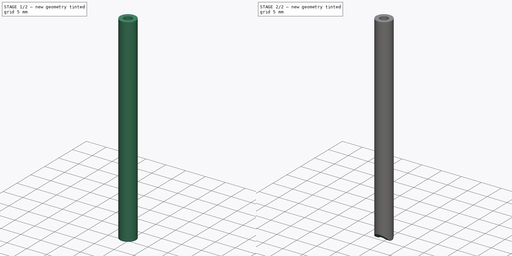
[diagram: build sequence overview — one tinted view per stage of 2, left to right]
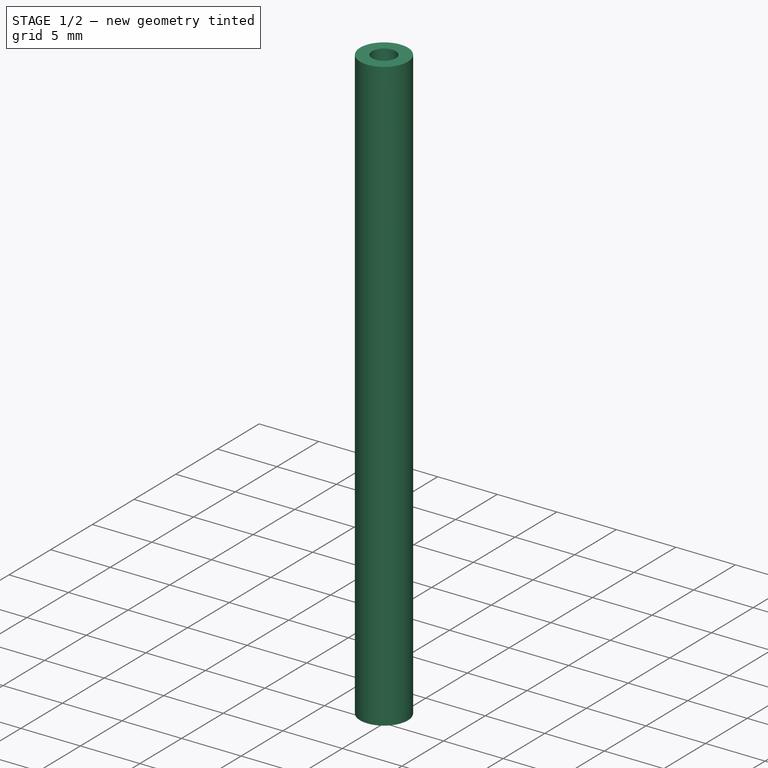
[diagram: stage 1 of 2 — iso view after this stage's code; geometry added in this stage tinted green]
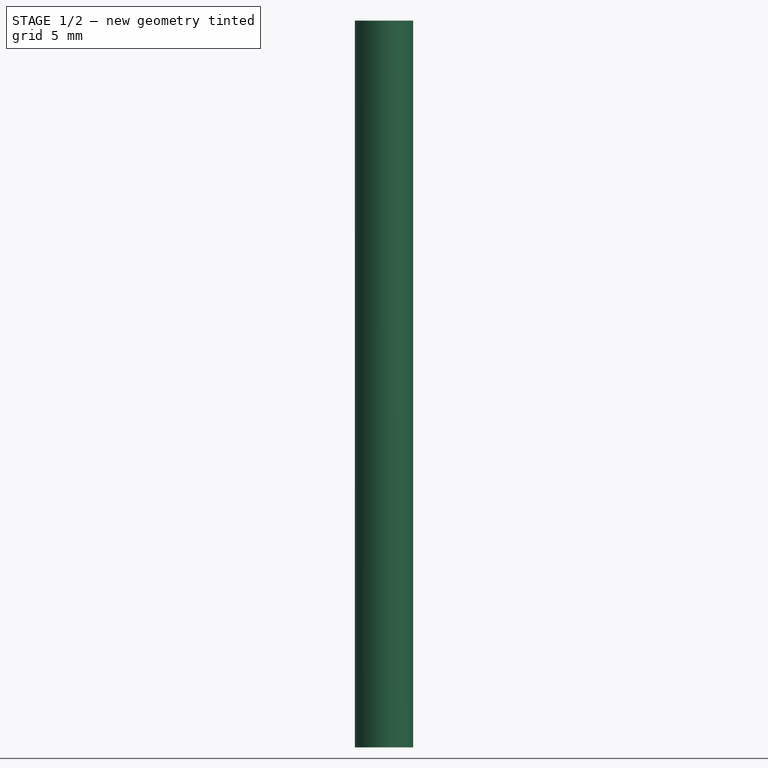
[diagram: stage 1 of 2 — front view after this stage's code; geometry added in this stage tinted green]
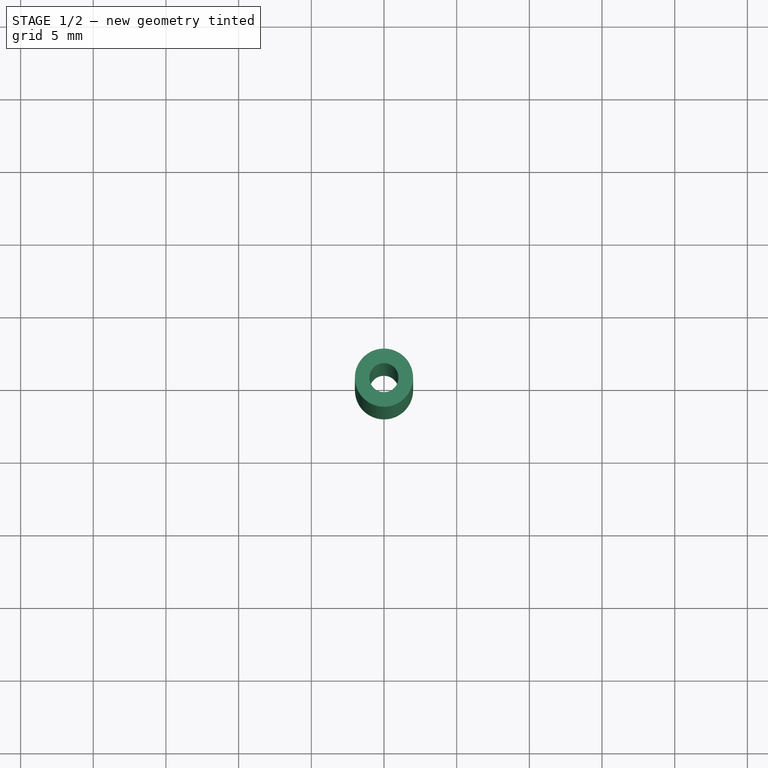
[diagram: stage 1 of 2 — top view after this stage's code; geometry added in this stage tinted green]
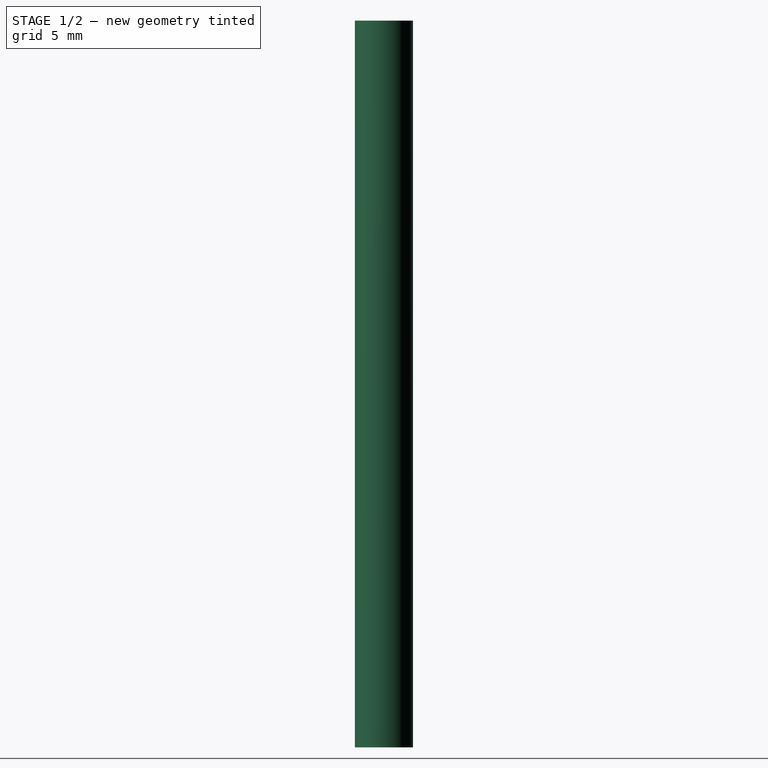
[diagram: stage 1 of 2 — right view after this stage's code; geometry added in this stage tinted green]
FCSTD DOCUMENT  (FreeCAD 0.19R21858 (Git))
Label: bowden_tube
License: All rights reserved
LicenseURL: http://en.wikipedia.org/wiki/All_rights_reserved
objects: Sketcher::SketchObject×2, PartDesign::Pad×1, PartDesign::Pocket×1, PartDesign::Body×1, App::Part×1
note: 7 computed .brp shape members not serialized (recipe doc carries the construction recipe); baked Part::Feature solids carry a one-line shape summary decoded from their .brp

FEATURE [Sketcher::SketchObject] Sketch089
  MapMode = 5
  Support = -> [XY_Plane102]
  sketch-geometry (2):
    g0: Circle CenterX=0 CenterY=0 CenterZ=0 NormalX=0 NormalY=0 NormalZ=1 AngleXU=0 Radius=2
    g1: Circle CenterX=0 CenterY=0 CenterZ=0 NormalX=0 NormalY=0 NormalZ=1 AngleXU=0 Radius=1
  constraints (4):
    c: Coincident(g0,g-1)
    c: Coincident(g1,g0)
    c: Diameter(g0) = 4
    c: Diameter(g1) = 2
FEATURE [PartDesign::Pad] Pad030  label="Pad031"
  Length = 50
  Length2 = 100
  Profile = -> Sketch089
  Type = 0
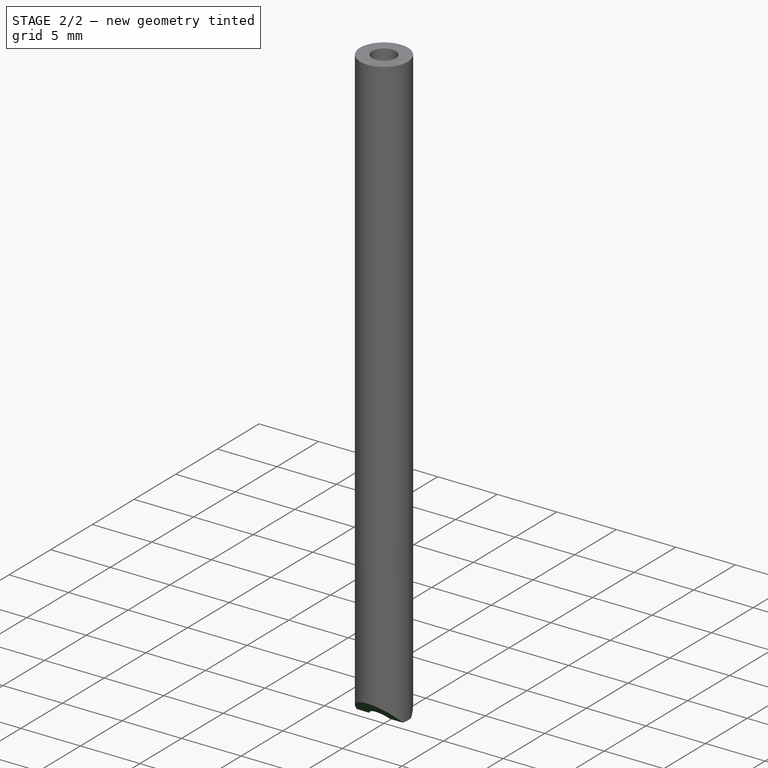
[diagram: stage 2 of 2 — iso view after this stage's code; geometry added in this stage tinted green]
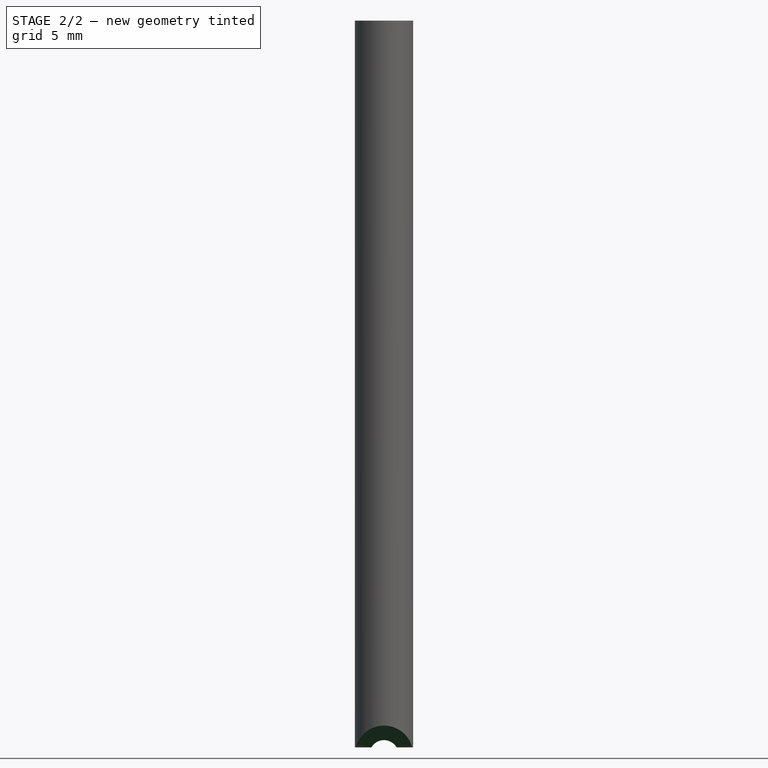
[diagram: stage 2 of 2 — front view after this stage's code; geometry added in this stage tinted green]
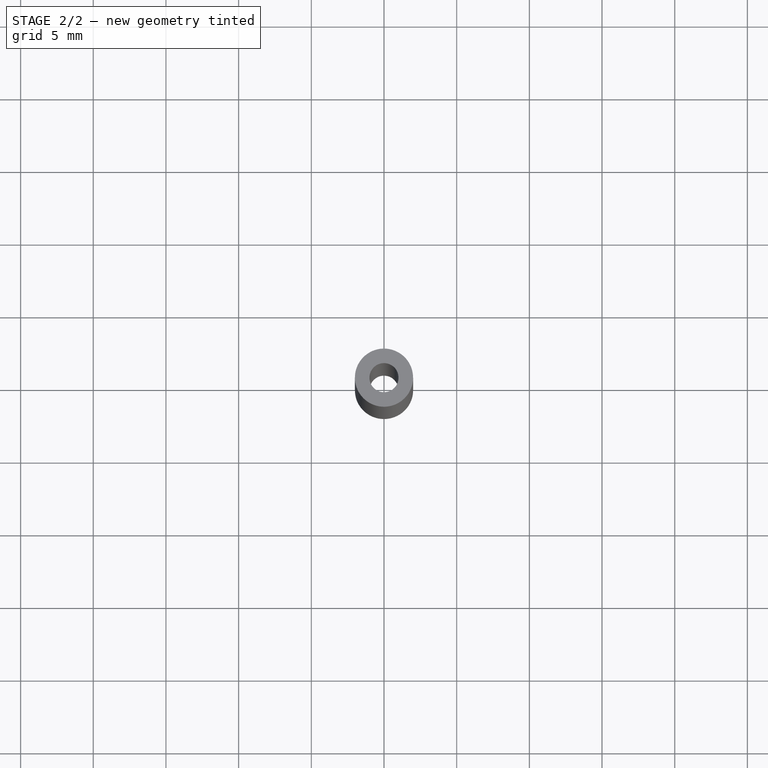
[diagram: stage 2 of 2 — top view after this stage's code; geometry added in this stage tinted green]
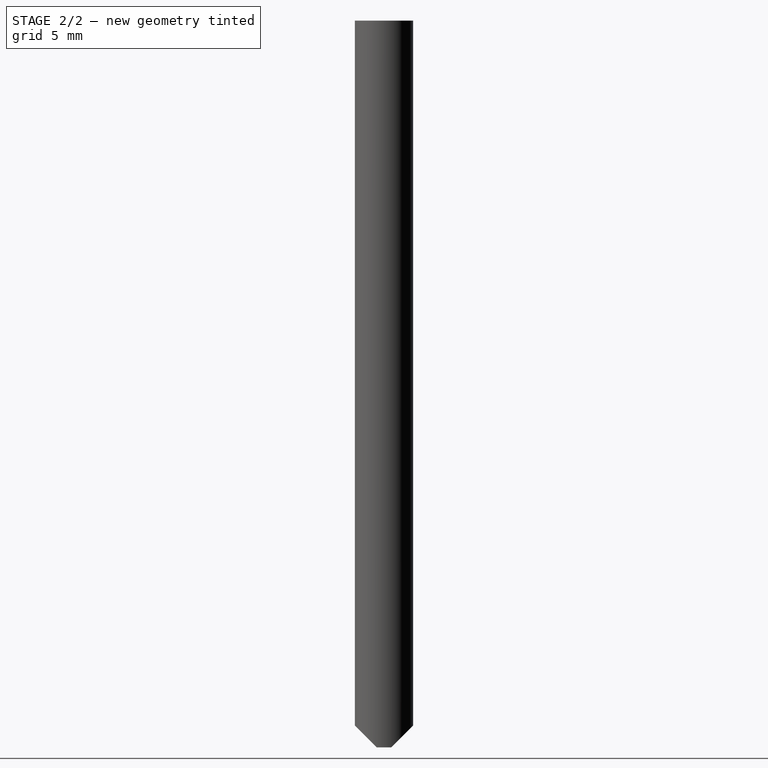
[diagram: stage 2 of 2 — right view after this stage's code; geometry added in this stage tinted green]
FEATURE [Sketcher::SketchObject] Sketch090
  MapMode = 5
  Placement = pos=(0,0,0) rot=(0.57735,0.57735,0.57735;2.0944rad)
  Support = -> [YZ_Plane102]
  sketch-geometry (5):
    g0: LineSegment StartX=0 StartY=-0.5 StartZ=0 EndX=4 EndY=3.5 EndZ=0
    g1: LineSegment StartX=4 StartY=3.5 StartZ=0 EndX=4 EndY=-3.5 EndZ=0
    g2: LineSegment StartX=4 StartY=-3.5 StartZ=0 EndX=-4 EndY=-3.5 EndZ=0
    g3: LineSegment StartX=-4 StartY=-3.5 StartZ=0 EndX=-4 EndY=3.5 EndZ=0
    g4: LineSegment StartX=-4 StartY=3.5 StartZ=0 EndX=0 EndY=-0.5 EndZ=0
  constraints (13):
    c: PointOnObject(g0,g-2)
    c: Coincident(g0,g1)
    c: Coincident(g1,g2)
    c: Coincident(g2,g3)
    c: Coincident(g3,g4)
    c: Coincident(g4,g0)
    c: Symmetric(g0,g3,g-2)
    c: Symmetric(g2,g1,g-2)
    c: Vertical(g1)
    c: DistanceY(g0,g-1) = 0.5
    c: Angle(g0,g-1) = 2.35619
    c: DistanceX(g2,g2) = 8
    c: DistanceY(g1,g1) = 7
FEATURE [PartDesign::Pocket] Pocket025
  BaseFeature = -> Pad030
  Length = 5
  Length2 = 100
  Midplane = true
  Profile = -> Sketch090
  Type = 1
FEATURE [PartDesign::Body] Body034  label="Body"
  Group = -> [Sketch089,Pad030,Sketch090,Pocket025]
  Origin = -> Origin102
  Tip = -> Pocket025
FEATURE [App::Part] Part  label="bowden_tube"
  Group = -> [Body034]
  Origin = -> Origin
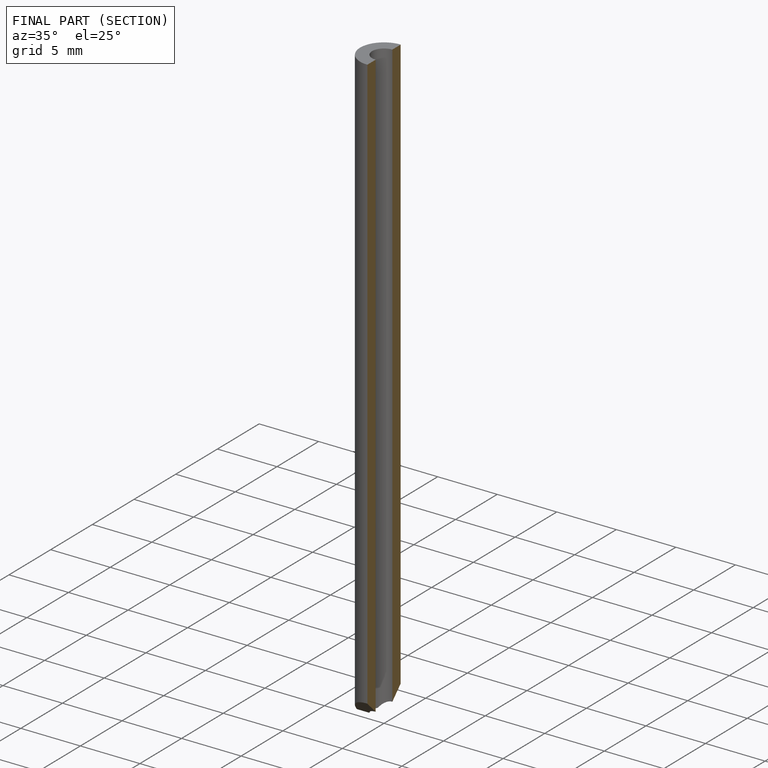
[diagram: finished part — half-section view (interior)]
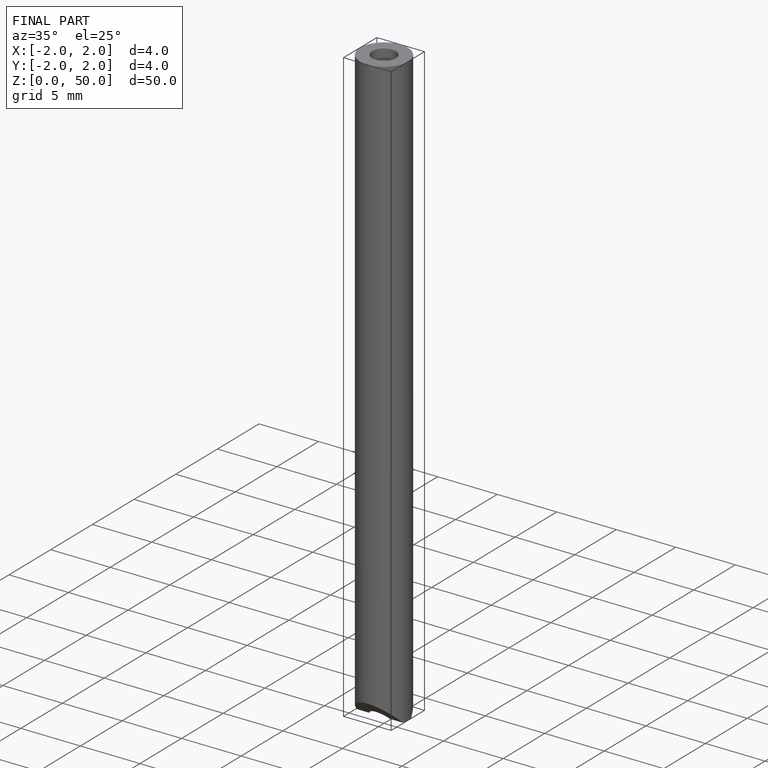
[diagram: finished part — iso view with bounding-box wireframe]
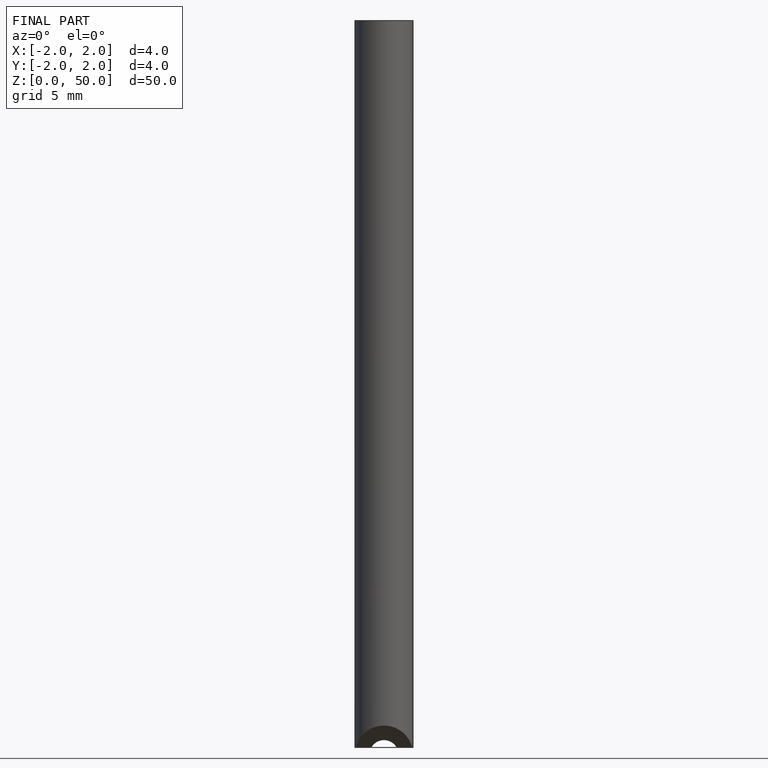
[diagram: finished part — front view with bounding-box wireframe]
